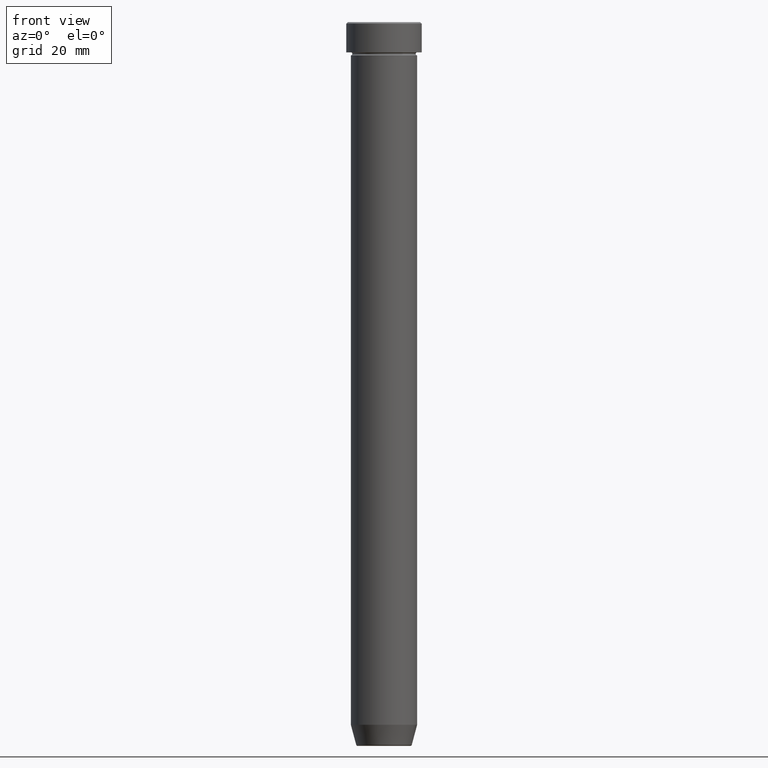
[diagram: clean part render]
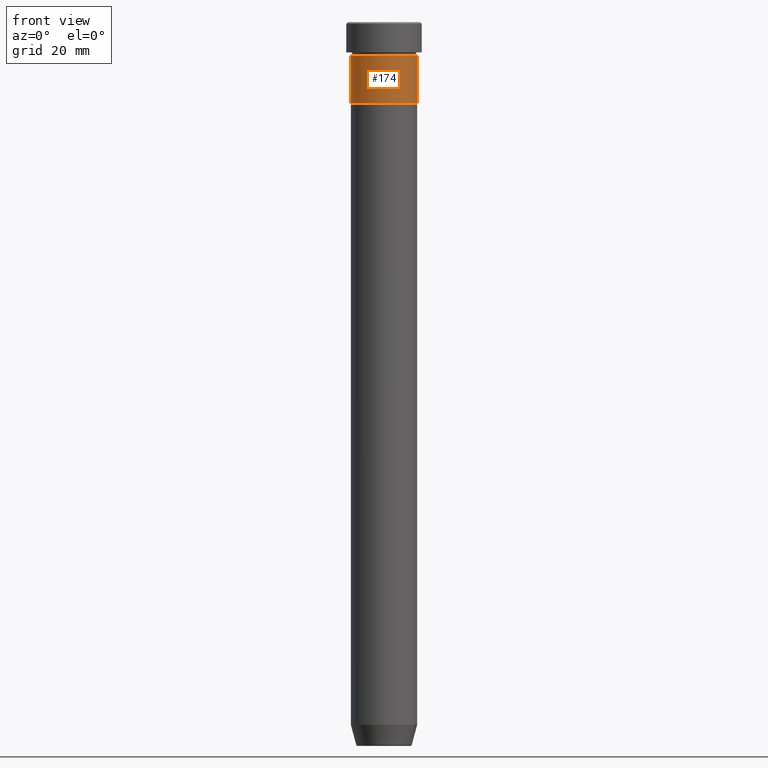
[diagram: same view with one face highlighted and labeled with its STEP entity id]
A machine part, front view. The second image highlights one B-rep face of the part: STEP entity #174.
In plain terms, the highlighted cylindrical surface (edge-blend (fillet) strip) has radius 11 mm, axis along (-0, -0, 1).
Its self-contained STEP definition (entity closure, byte-faithful):
#6 = DIRECTION ( 'NONE',  ( -0.000000000000000000, -0.000000000000000000, 1.000000000000000000 ) ) ;
#11 = CARTESIAN_POINT ( 'NONE',  ( -11.00000000000000000, 1.347111479062088405E-15, 0.000000000000000000 ) ) ;
#14 = ORIENTED_EDGE ( 'NONE', *, *, #134, .T. ) ;
#18 = DIRECTION ( 'NONE',  ( 1.000000000000000000, 0.000000000000000000, 0.000000000000000000 ) ) ;
#25 = LINE ( 'NONE', #155, #29 ) ;
#27 = CARTESIAN_POINT ( 'NONE',  ( 0.000000000000000000, 0.000000000000000000, -11.00000000000000000 ) ) ;
#29 = VECTOR ( 'NONE', #518, 1000.000000000000000 ) ;
#68 = VECTOR ( 'NONE', #6, 1000.000000000000000 ) ;
#72 = EDGE_CURVE ( 'NONE', #572, #541, #505, .T. ) ;
#74 = CARTESIAN_POINT ( 'NONE',  ( 11.00000000000000000, 0.000000000000000000, -11.00000000000000000 ) ) ;
#75 = CARTESIAN_POINT ( 'NONE',  ( 11.00000000000000000, 0.000000000000000000, -27.00000000000000000 ) ) ;
#105 = AXIS2_PLACEMENT_3D ( 'NONE', #27, #208, #346 ) ;
#109 = VERTEX_POINT ( 'NONE', #74 ) ;
#114 = CARTESIAN_POINT ( 'NONE',  ( -11.00000000000000000, 1.347111479062088405E-15, -11.00000000000000000 ) ) ;
#121 = DIRECTION ( 'NONE',  ( -0.000000000000000000, -0.000000000000000000, 1.000000000000000000 ) ) ;
#130 = EDGE_CURVE ( 'NONE', #455, #109, #25, .T. ) ;
#134 = EDGE_CURVE ( 'NONE', #572, #455, #406, .T. ) ;
#136 = EDGE_LOOP ( 'NONE', ( #448, #14, #171, #480 ) ) ;
#137 = AXIS2_PLACEMENT_3D ( 'NONE', #427, #121, #18 ) ;
#155 = CARTESIAN_POINT ( 'NONE',  ( 11.00000000000000000, 0.000000000000000000, 0.000000000000000000 ) ) ;
#167 = CARTESIAN_POINT ( 'NONE',  ( 0.000000000000000000, 0.000000000000000000, -27.00000000000000000 ) ) ;
#171 = ORIENTED_EDGE ( 'NONE', *, *, #130, .T. ) ;
#174 = ADVANCED_FACE ( 'NONE', ( #527 ), #495, .T. ) ;
#204 = DIRECTION ( 'NONE',  ( -0.000000000000000000, -0.000000000000000000, 1.000000000000000000 ) ) ;
#208 = DIRECTION ( 'NONE',  ( -0.000000000000000000, -0.000000000000000000, 1.000000000000000000 ) ) ;
#233 = CIRCLE ( 'NONE', #105, 11.00000000000000000 ) ;
#268 = CARTESIAN_POINT ( 'NONE',  ( -11.00000000000000000, 1.347111479062088405E-15, -27.00000000000000000 ) ) ;
#346 = DIRECTION ( 'NONE',  ( 1.000000000000000000, 0.000000000000000000, 0.000000000000000000 ) ) ;
#350 = DIRECTION ( 'NONE',  ( 1.000000000000000000, 0.000000000000000000, 0.000000000000000000 ) ) ;
#406 = CIRCLE ( 'NONE', #544, 11.00000000000000000 ) ;
#427 = CARTESIAN_POINT ( 'NONE',  ( 0.000000000000000000, 0.000000000000000000, 0.000000000000000000 ) ) ;
#448 = ORIENTED_EDGE ( 'NONE', *, *, #72, .F. ) ;
#455 = VERTEX_POINT ( 'NONE', #75 ) ;
#480 = ORIENTED_EDGE ( 'NONE', *, *, #534, .F. ) ;
#495 = CYLINDRICAL_SURFACE ( 'NONE', #137, 11.00000000000000000 ) ;
#505 = LINE ( 'NONE', #11, #68 ) ;
#518 = DIRECTION ( 'NONE',  ( -0.000000000000000000, -0.000000000000000000, 1.000000000000000000 ) ) ;
#527 = FACE_OUTER_BOUND ( 'NONE', #136, .T. ) ;
#534 = EDGE_CURVE ( 'NONE', #541, #109, #233, .T. ) ;
#541 = VERTEX_POINT ( 'NONE', #114 ) ;
#544 = AXIS2_PLACEMENT_3D ( 'NONE', #167, #204, #350 ) ;
#572 = VERTEX_POINT ( 'NONE', #268 ) ;